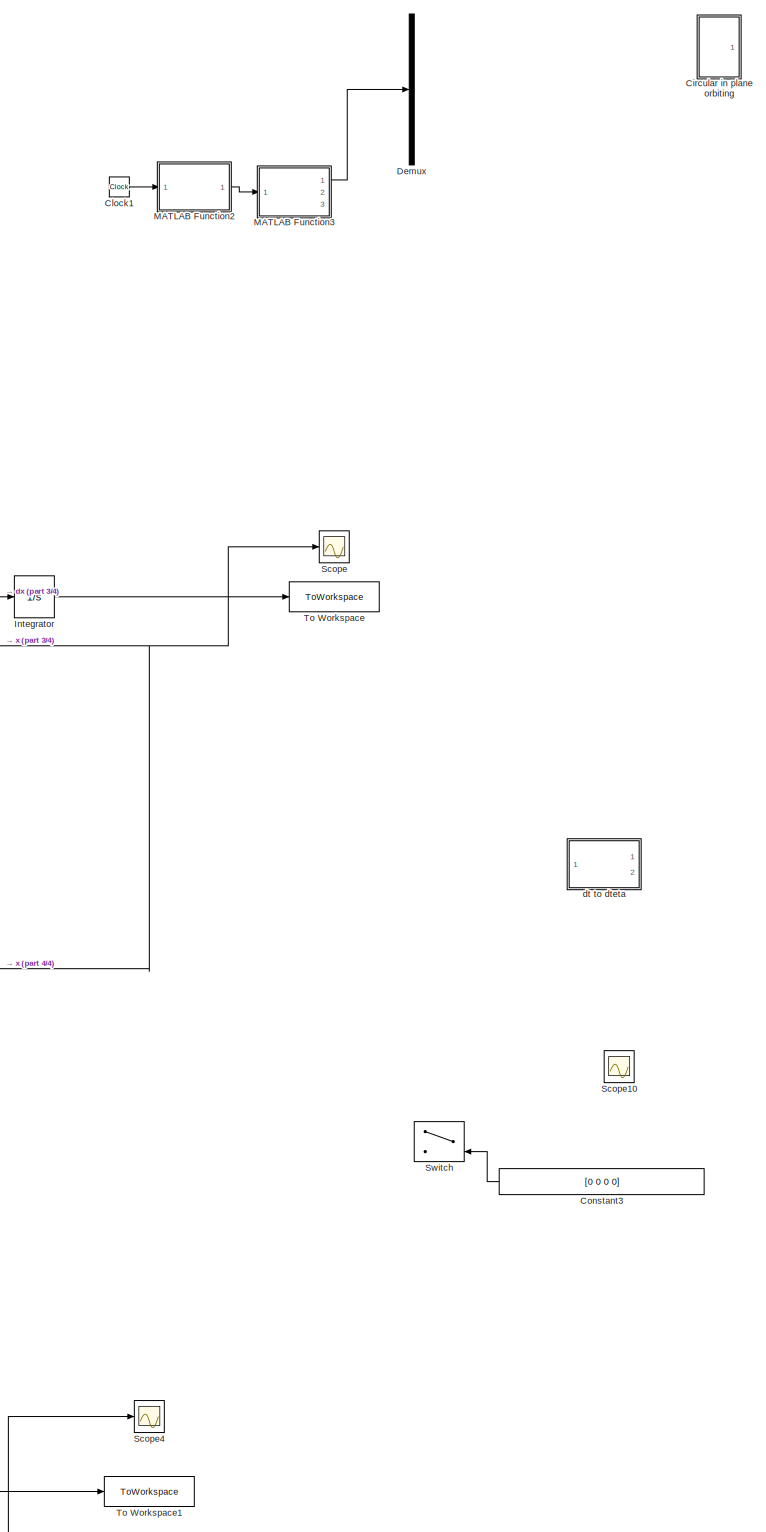
[diagram: root canvas - part 1/4, right side, full height]
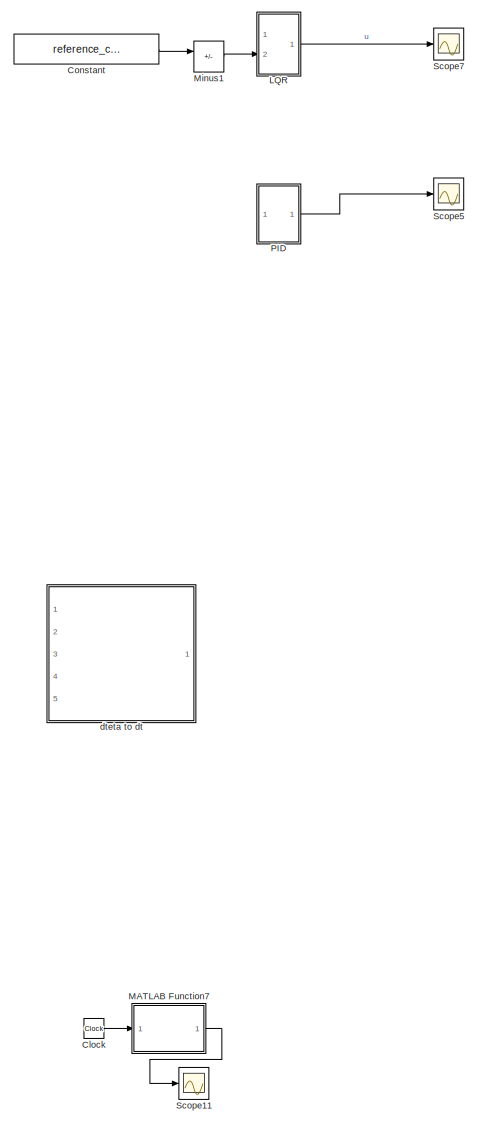
[diagram: root canvas - part 2/4, top right region]
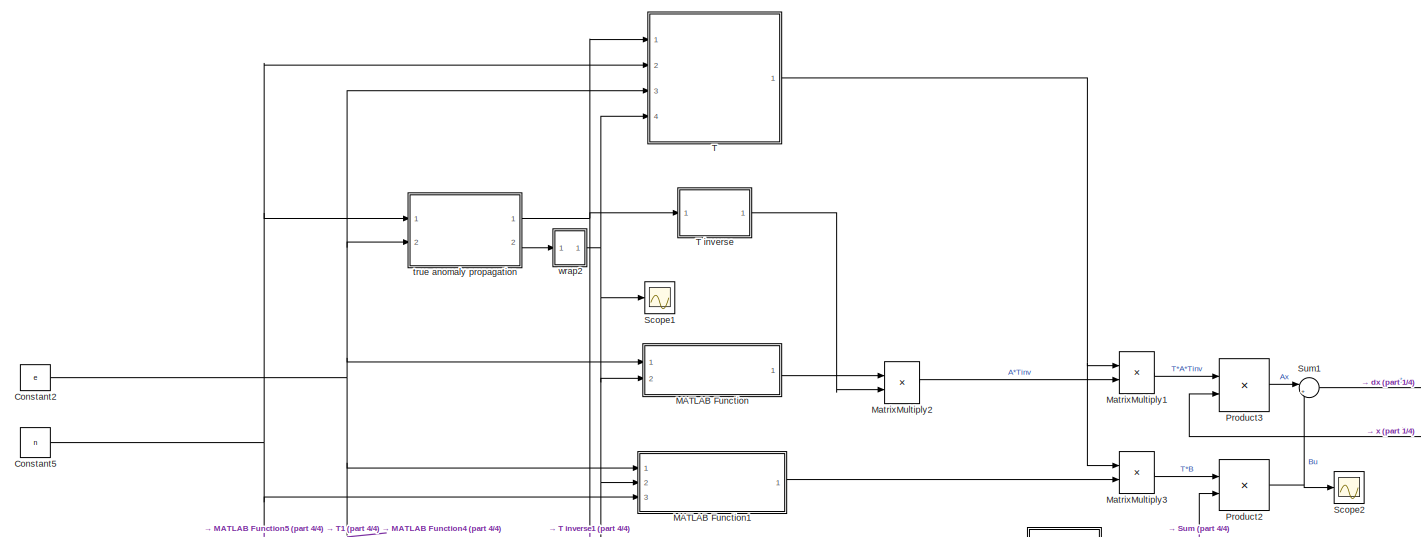
[diagram: root canvas - part 3/4, top left region]
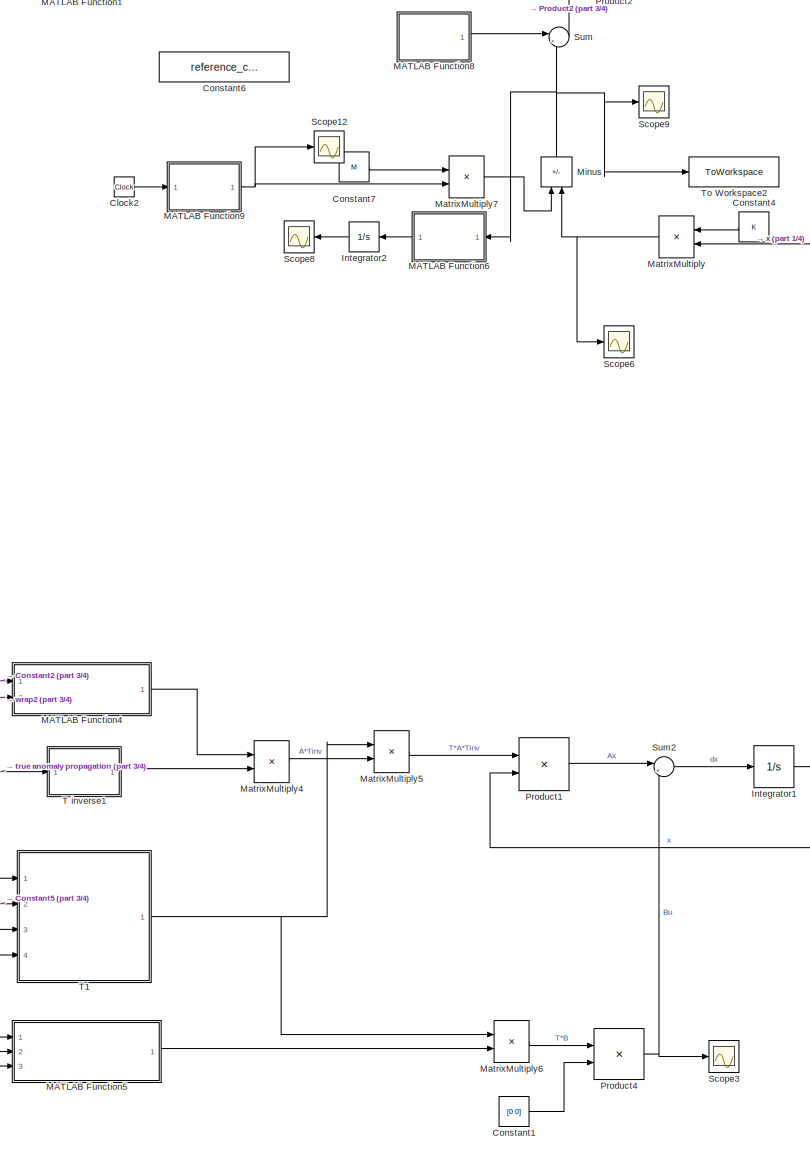
[diagram: root canvas - part 4/4, bottom center region]
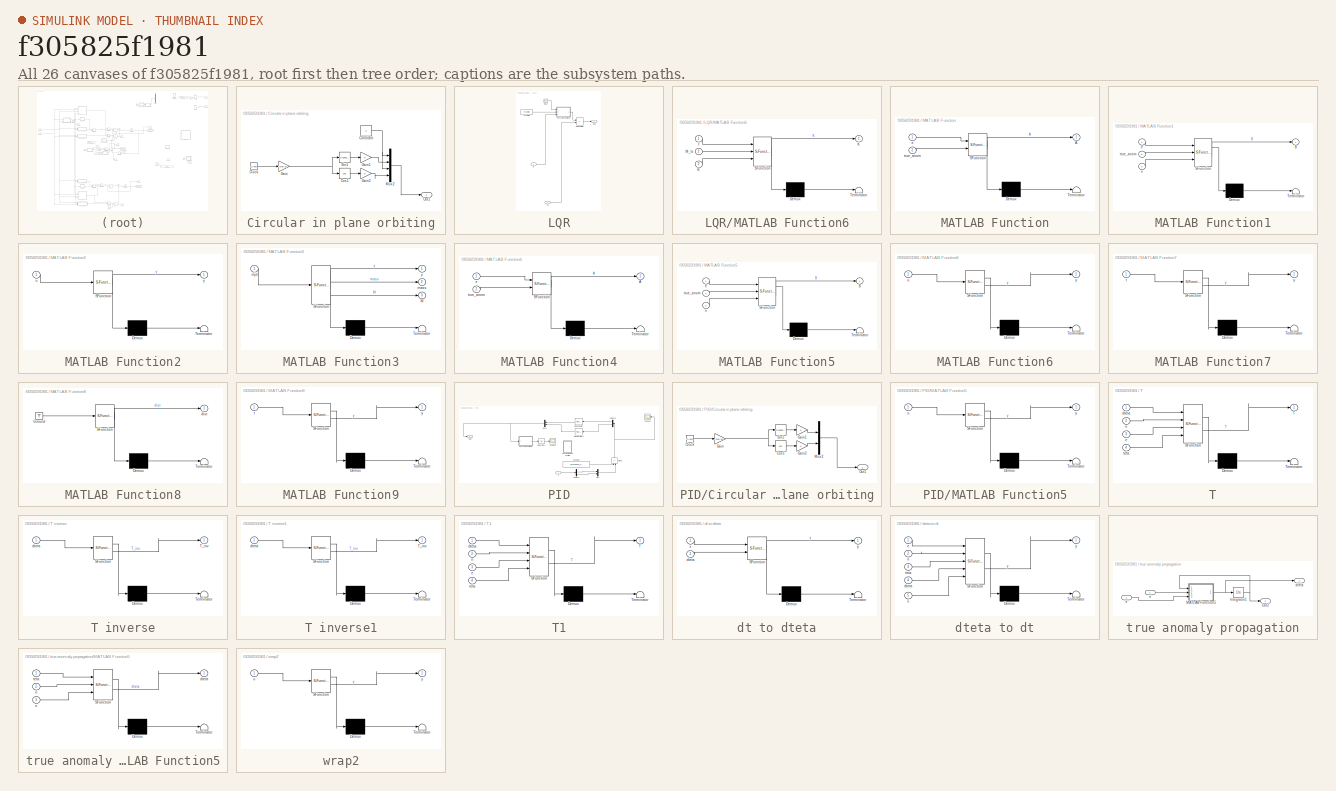
[diagram: thumbnail index - all 26 canvases of the model, root first then tree order]
MODEL slx_f305825f1981
KIND model
CONFIG AbsTol = auto
CONFIG EnableMultiTasking = off
CONFIG FixedStep = auto
CONFIG MaxStep = auto
CONFIG MinStep = auto
CONFIG RelTol = 1e-3
CONFIG SampleTimeConstraint = Unconstrained
CONFIG SolverName = VariableStepAuto
CONFIG StartTime = 0.0
CONFIG StopTime = 10000
BLOCK [SubSystem] Circular in plane orbiting
  Commented = on
  Ports = [0, 1]
  RequestExecContextInheritance = off
BLOCK [Clock] Circular in plane orbiting/Clock
BLOCK [Constant] Circular in plane orbiting/Constant
  Value = 0
BLOCK [Trigonometry] Circular in plane orbiting/Cos1
  Operator = cos
  Ports = [1, 1]
BLOCK [Gain] Circular in plane orbiting/Gain
  Gain = -2*pi/10
BLOCK [Gain] Circular in plane orbiting/Gain1
BLOCK [Gain] Circular in plane orbiting/Gain2
BLOCK [Mux] Circular in plane orbiting/Mux2
  DisplayOption = bar
  Ports = [4, 1]
BLOCK [Outport] Circular in plane orbiting/Out1
BLOCK [Trigonometry] Circular in plane orbiting/Sin1
  Ports = [1, 1]
BLOCK [Clock] Clock
  Commented = on
BLOCK [Clock] Clock1
  Commented = on
BLOCK [Clock] Clock2
BLOCK [Constant] Constant
  Commented = on
  Value = reference_conds
BLOCK [Constant] Constant1
  Value = [0 0]
BLOCK [Constant] Constant2
  Value = e
BLOCK [Constant] Constant3
  NameLocation = top
  Value = [0 0 0 0]
BLOCK [Constant] Constant4
  NameLocation = top
  Value = K
BLOCK [Constant] Constant5
  Value = n
BLOCK [Constant] Constant6
  Value = reference_conds
BLOCK [Constant] Constant7
  Value = M
BLOCK [Demux] Demux
  Commented = on
  Outputs = 6
  Ports = [1, 6]
BLOCK [Integrator] Integrator
  InitialCondition = init_conds
  Ports = [1, 1]
BLOCK [Integrator] Integrator1
  InitialCondition = init_conds_z
  Ports = [1, 1]
BLOCK [Integrator] Integrator2
  NameLocation = top
  Ports = [1, 1]
BLOCK [SubSystem] LQR
  Commented = on
  Ports = [2, 1]
  RequestExecContextInheritance = off
BLOCK [Inport] LQR/B
BLOCK [Clock] LQR/Clock
BLOCK [FromFile] LQR/From File
  FileName = M_LQR.mat
  SampleTime = 0
BLOCK [Inport] LQR/In2
  Port = 2
BLOCK [SubSystem] LQR/MATLAB Function6
  ErrorFcn = Stateflow.Translate.translate
  PermitHierarchicalResolution = ExplicitOnly
  Ports = [3, 1]
  RequestExecContextInheritance = off
  SFBlockType = MATLAB Function
  TreatAsAtomicUnit = on
BLOCK [Demux] LQR/MATLAB Function6/ Demux 
  Outputs = 1
  Ports = [1, 1]
BLOCK [S-Function] LQR/MATLAB Function6/ SFunction 
  EnableBusSupport = on
  FunctionName = sf_sfun
  PortCounts = [3 2]
  Ports = [3, 2]
  SFcnIsStateOwnerBlock = off
  SFunctionDeploymentMode = off
  Tag = Stateflow S-Function 7
BLOCK [Terminator] LQR/MATLAB Function6/ Terminator 
BLOCK [Inport] LQR/MATLAB Function6/B
  Port = 3
BLOCK [Outport] LQR/MATLAB Function6/K
BLOCK [Inport] LQR/MATLAB Function6/M_ts
  Port = 2
BLOCK [Inport] LQR/MATLAB Function6/t
BLOCK [Product] LQR/MatrixMultiply
  Multiplication = Matrix(*)
  Ports = [2, 1]
BLOCK [Outport] LQR/Out1
BLOCK [SubSystem] MATLAB Function
  ErrorFcn = Stateflow.Translate.translate
  PermitHierarchicalResolution = ExplicitOnly
  Ports = [2, 1]
  RequestExecContextInheritance = off
  SFBlockType = MATLAB Function
  TreatAsAtomicUnit = on
BLOCK [Demux] MATLAB Function/ Demux 
  Outputs = 1
  Ports = [1, 1]
BLOCK [S-Function] MATLAB Function/ SFunction 
  EnableBusSupport = on
  FunctionName = sf_sfun
  PortCounts = [2 2]
  Ports = [2, 2]
  SFcnIsStateOwnerBlock = off
  SFunctionDeploymentMode = off
  Tag = Stateflow S-Function 2
BLOCK [Terminator] MATLAB Function/ Terminator 
BLOCK [Outport] MATLAB Function/A
BLOCK [Inport] MATLAB Function/e
BLOCK [Inport] MATLAB Function/true_anom
  Port = 2
BLOCK [SubSystem] MATLAB Function1
  ErrorFcn = Stateflow.Translate.translate
  PermitHierarchicalResolution = ExplicitOnly
  Ports = [3, 1]
  RequestExecContextInheritance = off
  SFBlockType = MATLAB Function
  TreatAsAtomicUnit = on
BLOCK [Demux] MATLAB Function1/ Demux 
  Outputs = 1
  Ports = [1, 1]
BLOCK [S-Function] MATLAB Function1/ SFunction 
  EnableBusSupport = on
  FunctionName = sf_sfun
  PortCounts = [3 2]
  Ports = [3, 2]
  SFcnIsStateOwnerBlock = off
  SFunctionDeploymentMode = off
  Tag = Stateflow S-Function 1
BLOCK [Terminator] MATLAB Function1/ Terminator 
BLOCK [Outport] MATLAB Function1/B
BLOCK [Inport] MATLAB Function1/e
BLOCK [Inport] MATLAB Function1/n
  Port = 3
BLOCK [Inport] MATLAB Function1/true_anom
  Port = 2
BLOCK [SubSystem] MATLAB Function2
  Commented = on
  ErrorFcn = Stateflow.Translate.translate
  PermitHierarchicalResolution = ExplicitOnly
  Ports = [1, 1]
  RequestExecContextInheritance = off
  SFBlockType = MATLAB Function
  TreatAsAtomicUnit = on
BLOCK [Demux] MATLAB Function2/ Demux 
  Outputs = 1
  Ports = [1, 1]
BLOCK [S-Function] MATLAB Function2/ SFunction 
  EnableBusSupport = on
  FunctionName = sf_sfun
  PortCounts = [1 2]
  Ports = [1, 2]
  SFcnIsStateOwnerBlock = off
  SFunctionDeploymentMode = off
  Tag = Stateflow S-Function 3
BLOCK [Terminator] MATLAB Function2/ Terminator 
BLOCK [Inport] MATLAB Function2/u
BLOCK [Outport] MATLAB Function2/y
BLOCK [SubSystem] MATLAB Function3
  Commented = on
  ErrorFcn = Stateflow.Translate.translate
  PermitHierarchicalResolution = ExplicitOnly
  Ports = [1, 3]
  RequestExecContextInheritance = off
  SFBlockType = MATLAB Function
  TreatAsAtomicUnit = on
BLOCK [Demux] MATLAB Function3/ Demux 
  Outputs = 1
  Ports = [1, 1]
BLOCK [S-Function] MATLAB Function3/ SFunction 
  EnableBusSupport = on
  FunctionName = sf_sfun
  PortCounts = [1 4]
  Ports = [1, 4]
  SFcnIsStateOwnerBlock = off
  SFunctionDeploymentMode = off
  Tag = Stateflow S-Function 4
BLOCK [Terminator] MATLAB Function3/ Terminator 
BLOCK [Outport] MATLAB Function3/M
  Port = 3
BLOCK [Outport] MATLAB Function3/mass
  Port = 2
BLOCK [Inport] MATLAB Function3/mjd
BLOCK [Outport] MATLAB Function3/y
BLOCK [SubSystem] MATLAB Function4
  ErrorFcn = Stateflow.Translate.translate
  PermitHierarchicalResolution = ExplicitOnly
  Ports = [2, 1]
  RequestExecContextInheritance = off
  SFBlockType = MATLAB Function
  TreatAsAtomicUnit = on
BLOCK [Demux] MATLAB Function4/ Demux 
  Outputs = 1
  Ports = [1, 1]
BLOCK [S-Function] MATLAB Function4/ SFunction 
  EnableBusSupport = on
  FunctionName = sf_sfun
  PortCounts = [2 2]
  Ports = [2, 2]
  SFcnIsStateOwnerBlock = off
  SFunctionDeploymentMode = off
  Tag = Stateflow S-Function 13
BLOCK [Terminator] MATLAB Function4/ Terminator 
BLOCK [Outport] MATLAB Function4/A
BLOCK [Inport] MATLAB Function4/e
BLOCK [Inport] MATLAB Function4/true_anom
  Port = 2
BLOCK [SubSystem] MATLAB Function5
  ErrorFcn = Stateflow.Translate.translate
  PermitHierarchicalResolution = ExplicitOnly
  Ports = [3, 1]
  RequestExecContextInheritance = off
  SFBlockType = MATLAB Function
  TreatAsAtomicUnit = on
BLOCK [Demux] MATLAB Function5/ Demux 
  Outputs = 1
  Ports = [1, 1]
BLOCK [S-Function] MATLAB Function5/ SFunction 
  EnableBusSupport = on
  FunctionName = sf_sfun
  PortCounts = [3 2]
  Ports = [3, 2]
  SFcnIsStateOwnerBlock = off
  SFunctionDeploymentMode = off
  Tag = Stateflow S-Function 16
BLOCK [Terminator] MATLAB Function5/ Terminator 
BLOCK [Outport] MATLAB Function5/B
BLOCK [Inport] MATLAB Function5/e
BLOCK [Inport] MATLAB Function5/n
  Port = 3
BLOCK [Inport] MATLAB Function5/true_anom
  Port = 2
BLOCK [SubSystem] MATLAB Function6
  ErrorFcn = Stateflow.Translate.translate
  NameLocation = top
  PermitHierarchicalResolution = ExplicitOnly
  Ports = [1, 1]
  RequestExecContextInheritance = off
  SFBlockType = MATLAB Function
  TreatAsAtomicUnit = on
BLOCK [Demux] MATLAB Function6/ Demux 
  Outputs = 1
  Ports = [1, 1]
BLOCK [S-Function] MATLAB Function6/ SFunction 
  EnableBusSupport = on
  FunctionName = sf_sfun
  PortCounts = [1 2]
  Ports = [1, 2]
  SFcnIsStateOwnerBlock = off
  SFunctionDeploymentMode = off
  Tag = Stateflow S-Function 17
BLOCK [Terminator] MATLAB Function6/ Terminator 
BLOCK [Inport] MATLAB Function6/u
BLOCK [Outport] MATLAB Function6/y
BLOCK [SubSystem] MATLAB Function7
  Commented = on
  ErrorFcn = Stateflow.Translate.translate
  PermitHierarchicalResolution = ExplicitOnly
  Ports = [1, 1]
  RequestExecContextInheritance = off
  SFBlockType = MATLAB Function
  TreatAsAtomicUnit = on
BLOCK [Demux] MATLAB Function7/ Demux 
  Outputs = 1
  Ports = [1, 1]
BLOCK [S-Function] MATLAB Function7/ SFunction 
  EnableBusSupport = on
  FunctionName = sf_sfun
  PortCounts = [1 2]
  Ports = [1, 2]
  SFcnIsStateOwnerBlock = off
  SFunctionDeploymentMode = off
  Tag = Stateflow S-Function 18
BLOCK [Terminator] MATLAB Function7/ Terminator 
BLOCK [Inport] MATLAB Function7/t
BLOCK [Outport] MATLAB Function7/y
BLOCK [SubSystem] MATLAB Function8
  ErrorFcn = Stateflow.Translate.translate
  PermitHierarchicalResolution = ExplicitOnly
  Ports = [0, 1]
  RequestExecContextInheritance = off
  SFBlockType = MATLAB Function
  TreatAsAtomicUnit = on
BLOCK [Demux] MATLAB Function8/ Demux 
  Outputs = 1
  Ports = [1, 1]
BLOCK [Ground] MATLAB Function8/ Ground 
BLOCK [S-Function] MATLAB Function8/ SFunction 
  EnableBusSupport = on
  FunctionName = sf_sfun
  PortCounts = [1 2]
  Ports = [1, 2]
  SFcnIsStateOwnerBlock = off
  SFunctionDeploymentMode = off
  Tag = Stateflow S-Function 19
BLOCK [Terminator] MATLAB Function8/ Terminator 
BLOCK [Outport] MATLAB Function8/dist
BLOCK [SubSystem] MATLAB Function9
  ErrorFcn = Stateflow.Translate.translate
  PermitHierarchicalResolution = ExplicitOnly
  Ports = [1, 1]
  RequestExecContextInheritance = off
  SFBlockType = MATLAB Function
  TreatAsAtomicUnit = on
BLOCK [Demux] MATLAB Function9/ Demux 
  Outputs = 1
  Ports = [1, 1]
BLOCK [S-Function] MATLAB Function9/ SFunction 
  EnableBusSupport = on
  FunctionName = sf_sfun
  PortCounts = [1 2]
  Ports = [1, 2]
  SFcnIsStateOwnerBlock = off
  SFunctionDeploymentMode = off
  Tag = Stateflow S-Function 20
BLOCK [Terminator] MATLAB Function9/ Terminator 
BLOCK [Inport] MATLAB Function9/t
BLOCK [Outport] MATLAB Function9/y
BLOCK [Product] MatrixMultiply
  Multiplication = Matrix(*)
  NameLocation = top
  Ports = [2, 1]
BLOCK [Product] MatrixMultiply1
  Multiplication = Matrix(*)
  Ports = [2, 1]
BLOCK [Product] MatrixMultiply2
  Multiplication = Matrix(*)
  Ports = [2, 1]
BLOCK [Product] MatrixMultiply3
  Multiplication = Matrix(*)
  Ports = [2, 1]
BLOCK [Product] MatrixMultiply4
  Multiplication = Matrix(*)
  Ports = [2, 1]
BLOCK [Product] MatrixMultiply5
  Multiplication = Matrix(*)
  Ports = [2, 1]
BLOCK [Product] MatrixMultiply6
  Multiplication = Matrix(*)
  Ports = [2, 1]
BLOCK [Product] MatrixMultiply7
  Multiplication = Matrix(*)
  Ports = [2, 1]
BLOCK [Sum] Minus
  IconShape = rectangular
  Inputs = +-
  NameLocation = right
  Ports = [2, 1]
BLOCK [Sum] Minus1
  Commented = on
  IconShape = rectangular
  Inputs = +-
  Ports = [2, 1]
BLOCK [SubSystem] PID
  Commented = on
  Ports = [1, 1]
  RequestExecContextInheritance = off
BLOCK [SubSystem] PID/Circular in plane orbiting
  Commented = on
  Ports = [0, 1]
  RequestExecContextInheritance = off
BLOCK [Clock] PID/Circular in plane orbiting/Clock
BLOCK [Trigonometry] PID/Circular in plane orbiting/Cos1
  Operator = cos
  Ports = [1, 1]
BLOCK [Gain] PID/Circular in plane orbiting/Gain
  Gain = -2*pi/10
BLOCK [Gain] PID/Circular in plane orbiting/Gain1
BLOCK [Gain] PID/Circular in plane orbiting/Gain2
BLOCK [Mux] PID/Circular in plane orbiting/Mux2
  DisplayOption = bar
  Inputs = 2
  Ports = [2, 1]
BLOCK [Outport] PID/Circular in plane orbiting/Out1
BLOCK [Trigonometry] PID/Circular in plane orbiting/Sin1
  Ports = [1, 1]
BLOCK [Constant] PID/Constant
  Value = reference_conds
BLOCK [Demux] PID/Demux1
  Ports = [1, 4]
BLOCK [Demux] PID/Demux2
  NameLocation = top
  Outputs = 2
  Ports = [1, 2]
BLOCK [Integrator] PID/Integrator1
  Ports = [1, 1]
BLOCK [SubSystem] PID/MATLAB Function5
  ErrorFcn = Stateflow.Translate.translate
  PermitHierarchicalResolution = ExplicitOnly
  Ports = [1, 1]
  RequestExecContextInheritance = off
  SFBlockType = MATLAB Function
  TreatAsAtomicUnit = on
BLOCK [Demux] PID/MATLAB Function5/ Demux 
  Outputs = 1
  Ports = [1, 1]
BLOCK [S-Function] PID/MATLAB Function5/ SFunction 
  EnableBusSupport = on
  FunctionName = sf_sfun
  PortCounts = [1 2]
  Ports = [1, 2]
  SFcnIsStateOwnerBlock = off
  SFunctionDeploymentMode = off
  Tag = Stateflow S-Function 6
BLOCK [Terminator] PID/MATLAB Function5/ Terminator 
BLOCK [Inport] PID/MATLAB Function5/u
BLOCK [Outport] PID/MATLAB Function5/y
BLOCK [Sum] PID/Minus
  IconShape = rectangular
  Inputs = +-
  NameLocation = right
  Ports = [2, 1]
BLOCK [Mux] PID/Mux
  DisplayOption = bar
  Inputs = 2
  Ports = [2, 1]
BLOCK [Mux] PID/Mux1
  DisplayOption = bar
  Inputs = 2
  NameLocation = top
  Ports = [2, 1]
BLOCK [Outport] PID/Out1
BLOCK [Reference] PID/PID Controller  REF=pid_lib/PID Controller
  NameLocation = top
  Ports = [1, 1]
  SourceBlock = pid_lib/PID Controller
  SourceProductBaseCode = SL
  SourceType = PID 1dof
BLOCK [Reference] PID/PID Controller1  REF=pid_lib/PID Controller
  NameLocation = top
  Ports = [1, 1]
  SourceBlock = pid_lib/PID Controller
  SourceProductBaseCode = SL
  SourceType = PID 1dof
BLOCK [Scope] PID/Scope4
  Floating = off
  NumInputPorts = 1
  Ports = [1]
  ScopeSpecificationString = Simulink.scopes.TimeScopeBlockCfg('CurrentConfiguration', extmgr.ConfigurationSet(extmgr.Configuration('Core','General UI',true),extmgr.Configuration('Core','Source UI',true),extmgr.Configuration('Sources','WiredSimulink',true,'DataLoggingVariableName','ScopeData1'),extmgr.Configuration('Visuals','Time Domain',true,'SerializedDisplays',{struct('MinYLimReal','-0.0001','MaxYLimReal','0.00089','YLabe...<+1395ch>
BLOCK [Scope] PID/Scope6
  Floating = off
  NameLocation = top
  NumInputPorts = 1
  Ports = [1]
  ScopeSpecificationString = Simulink.scopes.TimeScopeBlockCfg('CurrentConfiguration', extmgr.ConfigurationSet(extmgr.Configuration('Core','General UI',true),extmgr.Configuration('Core','Source UI',true),extmgr.Configuration('Sources','WiredSimulink',true,'DataLoggingVariableName','ScopeData6'),extmgr.Configuration('Visuals','Time Domain',true,'SerializedDisplays',{struct('MinYLimReal','-7.62803','MaxYLimReal','30.57968','YLa...<+1409ch>
BLOCK [Inport] PID/x
BLOCK [Product] Product1
  Multiplication = Matrix(*)
  NameLocation = top
  Ports = [2, 1]
  SCDEnableBlockLinearizationSpecification = on
BLOCK [Product] Product2
  Multiplication = Matrix(*)
  Ports = [2, 1]
  SCDEnableBlockLinearizationSpecification = on
BLOCK [Product] Product3
  Multiplication = Matrix(*)
  NameLocation = top
  Ports = [2, 1]
  SCDEnableBlockLinearizationSpecification = on
BLOCK [Product] Product4
  Multiplication = Matrix(*)
  Ports = [2, 1]
  SCDEnableBlockLinearizationSpecification = on
BLOCK [Scope] Scope
  Floating = off
  NumInputPorts = 1
  Ports = [1]
  ScopeSpecificationString = Simulink.scopes.TimeScopeBlockCfg('CurrentConfiguration', extmgr.ConfigurationSet(extmgr.Configuration('Core','General UI',true),extmgr.Configuration('Core','Source UI',true),extmgr.Configuration('Sources','WiredSimulink',true),extmgr.Configuration('Visuals','Time Domain',true,'SerializedDisplays',{struct('MinYLimReal','-24.94565','MaxYLimReal','24.51087','YLabelReal','','MinYLimMag','0.00000','Ma...<+1538ch>
BLOCK [Scope] Scope1
  Floating = off
  NumInputPorts = 1
  Ports = [1]
  ScopeSpecificationString = Simulink.scopes.TimeScopeBlockCfg('CurrentConfiguration', extmgr.ConfigurationSet(extmgr.Configuration('Core','General UI',true),extmgr.Configuration('Core','Source UI',true),extmgr.Configuration('Sources','WiredSimulink',true,'DataLoggingVariableName','ScopeData1'),extmgr.Configuration('Visuals','Time Domain',true,'SerializedDisplays',{struct('MinYLimReal','-0.78542','MaxYLimReal','7.06882','YLab...<+1402ch>
BLOCK [Scope] Scope10
  Floating = off
  NumInputPorts = 1
  Ports = [1]
  ScopeSpecificationString = Simulink.scopes.TimeScopeBlockCfg('CurrentConfiguration', extmgr.ConfigurationSet(extmgr.Configuration('Core','General UI',true),extmgr.Configuration('Core','Source UI',true),extmgr.Configuration('Sources','WiredSimulink',true,'DataLoggingVariableName','ScopeData1'),extmgr.Configuration('Visuals','Time Domain',true,'SerializedDisplays',{struct('MinYLimReal','-1.23683','MaxYLimReal','0.14854','YLab...<+1585ch>
BLOCK [Scope] Scope11
  Commented = on
  Floating = off
  NumInputPorts = 1
  Ports = [1]
  ScopeSpecificationString = Simulink.scopes.TimeScopeBlockCfg('CurrentConfiguration', extmgr.ConfigurationSet(extmgr.Configuration('Core','General UI',true),extmgr.Configuration('Core','Source UI',true),extmgr.Configuration('Sources','WiredSimulink',true,'DataLoggingVariableName','ScopeData5'),extmgr.Configuration('Visuals','Time Domain',true,'SerializedDisplays',{struct('MinYLimReal','-56.25','MaxYLimReal','6.25','YLabelRea...<+1453ch>
BLOCK [Scope] Scope12
  Floating = off
  NumInputPorts = 1
  Ports = [1]
  ScopeSpecificationString = Simulink.scopes.TimeScopeBlockCfg('CurrentConfiguration', extmgr.ConfigurationSet(extmgr.Configuration('Core','General UI',true),extmgr.Configuration('Core','Source UI',true),extmgr.Configuration('Sources','WiredSimulink',true,'DataLoggingVariableName','ScopeData1'),extmgr.Configuration('Visuals','Time Domain',true,'SerializedDisplays',{struct('MinYLimReal','-22.25031','MaxYLimReal','-19.96001','Y...<+1449ch>
BLOCK [Scope] Scope2
  Floating = off
  NumInputPorts = 1
  Ports = [1]
  ScopeSpecificationString = Simulink.scopes.TimeScopeBlockCfg('CurrentConfiguration', extmgr.ConfigurationSet(extmgr.Configuration('Core','General UI',true),extmgr.Configuration('Core','Source UI',true),extmgr.Configuration('Sources','WiredSimulink',true,'DataLoggingVariableName','ScopeData1'),extmgr.Configuration('Visuals','Time Domain',true,'SerializedDisplays',{struct('MinYLimReal','-1.00000','MaxYLimReal','1.00000','YLab...<+1384ch>
BLOCK [Scope] Scope3
  Floating = off
  NumInputPorts = 1
  Ports = [1]
  ScopeSpecificationString = Simulink.scopes.TimeScopeBlockCfg('CurrentConfiguration', extmgr.ConfigurationSet(extmgr.Configuration('Core','General UI',true),extmgr.Configuration('Core','Source UI',true),extmgr.Configuration('Sources','WiredSimulink',true,'DataLoggingVariableName','ScopeData1'),extmgr.Configuration('Visuals','Time Domain',true,'SerializedDisplays',{struct('MinYLimReal','-1.00000','MaxYLimReal','1.00000','YLab...<+1370ch>
BLOCK [Scope] Scope4
  Floating = off
  NumInputPorts = 1
  Ports = [1]
  ScopeSpecificationString = Simulink.scopes.TimeScopeBlockCfg('CurrentConfiguration', extmgr.ConfigurationSet(extmgr.Configuration('Core','General UI',true),extmgr.Configuration('Core','Source UI',true),extmgr.Configuration('Sources','WiredSimulink',true,'DataLoggingVariableName','ScopeData2'),extmgr.Configuration('Visuals','Time Domain',true,'SerializedDisplays',{struct('MinYLimReal','-6.5','MaxYLimReal','1.83333','YLabelRe...<+1441ch>
BLOCK [Scope] Scope5
  Commented = on
  Floating = off
  NumInputPorts = 1
  Ports = [1]
  ScopeSpecificationString = Simulink.scopes.TimeScopeBlockCfg('CurrentConfiguration', extmgr.ConfigurationSet(extmgr.Configuration('Core','General UI',true),extmgr.Configuration('Core','Source UI',true),extmgr.Configuration('Sources','WiredSimulink',true,'DataLoggingVariableName','ScopeData5'),extmgr.Configuration('Visuals','Time Domain',true,'SerializedDisplays',{struct('MinYLimReal','-0.00004','MaxYLimReal','0.00039','YLab...<+1418ch>
BLOCK [Scope] Scope6
  Floating = off
  NumInputPorts = 1
  Ports = [1]
  ScopeSpecificationString = Simulink.scopes.TimeScopeBlockCfg('CurrentConfiguration', extmgr.ConfigurationSet(extmgr.Configuration('Core','General UI',true),extmgr.Configuration('Core','Source UI',true),extmgr.Configuration('Sources','WiredSimulink',true,'DataLoggingVariableName','ScopeData1'),extmgr.Configuration('Visuals','Time Domain',true,'SerializedDisplays',{struct('MinYLimReal','-0.38697','MaxYLimReal','0.043','YLabel...<+1425ch>
BLOCK [Scope] Scope7
  Commented = on
  Floating = off
  NumInputPorts = 1
  Ports = [1]
  ScopeSpecificationString = Simulink.scopes.TimeScopeBlockCfg('CurrentConfiguration', extmgr.ConfigurationSet(extmgr.Configuration('Core','General UI',true),extmgr.Configuration('Core','Source UI',true),extmgr.Configuration('Sources','WiredSimulink',true,'DataLoggingVariableName','ScopeData1'),extmgr.Configuration('Visuals','Time Domain',true,'SerializedDisplays',{struct('MinYLimReal','-16.40981','MaxYLimReal','10.65705','YL...<+1490ch>
BLOCK [Scope] Scope8
  Floating = off
  NameLocation = top
  NumInputPorts = 1
  Ports = [1]
  ScopeSpecificationString = Simulink.scopes.TimeScopeBlockCfg('CurrentConfiguration', extmgr.ConfigurationSet(extmgr.Configuration('Core','General UI',true),extmgr.Configuration('Core','Source UI',true),extmgr.Configuration('Sources','WiredSimulink',true,'DataLoggingVariableName','ScopeData2'),extmgr.Configuration('Visuals','Time Domain',true,'SerializedDisplays',{struct('MinYLimReal','-0.04149','MaxYLimReal','0.37342','YLab...<+1401ch>
BLOCK [Scope] Scope9
  Floating = off
  NumInputPorts = 1
  Ports = [1]
  ScopeSpecificationString = Simulink.scopes.TimeScopeBlockCfg('CurrentConfiguration', extmgr.ConfigurationSet(extmgr.Configuration('Core','General UI',true),extmgr.Configuration('Core','Source UI',true),extmgr.Configuration('Sources','WiredSimulink',true,'DataLoggingVariableName','ScopeData3'),extmgr.Configuration('Visuals','Time Domain',true,'SerializedDisplays',{struct('MinYLimReal','-0.00113','MaxYLimReal','0.00113','YLab...<+1523ch>
BLOCK [Sum] Sum
  Inputs = |++
  Ports = [2, 1]
BLOCK [Sum] Sum1
  Inputs = |++
  Ports = [2, 1]
BLOCK [Sum] Sum2
  Inputs = |++
  Ports = [2, 1]
BLOCK [Switch] Switch
  Criteria = u2 > Threshold
  InputSameDT = off
  NameLocation = top
  SaturateOnIntegerOverflow = off
  Threshold = 0.0010
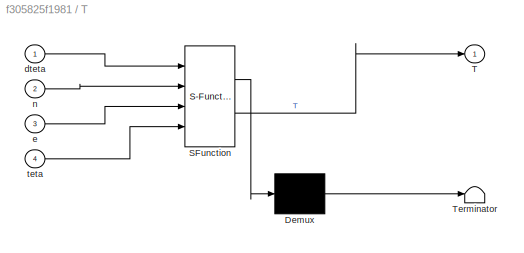
BLOCK [SubSystem] T
  ErrorFcn = Stateflow.Translate.translate
  PermitHierarchicalResolution = ExplicitOnly
  Ports = [4, 1]
  RequestExecContextInheritance = off
  SFBlockType = MATLAB Function
  TreatAsAtomicUnit = on
BLOCK [SubSystem] T inverse
  ErrorFcn = Stateflow.Translate.translate
  PermitHierarchicalResolution = ExplicitOnly
  Ports = [1, 1]
  RequestExecContextInheritance = off
  SFBlockType = MATLAB Function
  TreatAsAtomicUnit = on
BLOCK [Demux] T inverse/ Demux 
  Outputs = 1
  Ports = [1, 1]
BLOCK [S-Function] T inverse/ SFunction 
  EnableBusSupport = on
  FunctionName = sf_sfun
  PortCounts = [1 2]
  Ports = [1, 2]
  SFcnIsStateOwnerBlock = off
  SFunctionDeploymentMode = off
  Tag = Stateflow S-Function 12
BLOCK [Terminator] T inverse/ Terminator 
BLOCK [Outport] T inverse/T_inv
BLOCK [Inport] T inverse/dteta
BLOCK [SubSystem] T inverse1
  ErrorFcn = Stateflow.Translate.translate
  PermitHierarchicalResolution = ExplicitOnly
  Ports = [1, 1]
  RequestExecContextInheritance = off
  SFBlockType = MATLAB Function
  TreatAsAtomicUnit = on
BLOCK [Demux] T inverse1/ Demux 
  Outputs = 1
  Ports = [1, 1]
BLOCK [S-Function] T inverse1/ SFunction 
  EnableBusSupport = on
  FunctionName = sf_sfun
  PortCounts = [1 2]
  Ports = [1, 2]
  SFcnIsStateOwnerBlock = off
  SFunctionDeploymentMode = off
  Tag = Stateflow S-Function 14
BLOCK [Terminator] T inverse1/ Terminator 
BLOCK [Outport] T inverse1/T_inv
BLOCK [Inport] T inverse1/dteta
BLOCK [Demux] T/ Demux 
  Outputs = 1
  Ports = [1, 1]
BLOCK [S-Function] T/ SFunction 
  EnableBusSupport = on
  FunctionName = sf_sfun
  PortCounts = [4 2]
  Ports = [4, 2]
  SFcnIsStateOwnerBlock = off
  SFunctionDeploymentMode = off
  Tag = Stateflow S-Function 5
BLOCK [Terminator] T/ Terminator 
BLOCK [Outport] T/T
BLOCK [Inport] T/dteta
BLOCK [Inport] T/e
  Port = 3
BLOCK [Inport] T/n
  Port = 2
BLOCK [Inport] T/teta
  Port = 4
BLOCK [SubSystem] T1
  ErrorFcn = Stateflow.Translate.translate
  PermitHierarchicalResolution = ExplicitOnly
  Ports = [4, 1]
  RequestExecContextInheritance = off
  SFBlockType = MATLAB Function
  TreatAsAtomicUnit = on
BLOCK [Demux] T1/ Demux 
  Outputs = 1
  Ports = [1, 1]
BLOCK [S-Function] T1/ SFunction 
  EnableBusSupport = on
  FunctionName = sf_sfun
  PortCounts = [4 2]
  Ports = [4, 2]
  SFcnIsStateOwnerBlock = off
  SFunctionDeploymentMode = off
  Tag = Stateflow S-Function 15
BLOCK [Terminator] T1/ Terminator 
BLOCK [Outport] T1/T
BLOCK [Inport] T1/dteta
BLOCK [Inport] T1/e
  Port = 3
BLOCK [Inport] T1/n
  Port = 2
BLOCK [Inport] T1/teta
  Port = 4
BLOCK [ToWorkspace] To Workspace
  FixptAsFi = on
  MaxDataPoints = inf
  Ports = [1]
  SampleTime = -1
  SaveFormat = Timeseries
  VariableName = simout
BLOCK [ToWorkspace] To Workspace1
  FixptAsFi = on
  MaxDataPoints = inf
  Ports = [1]
  SampleTime = -1
  SaveFormat = Timeseries
  VariableName = z_z
BLOCK [ToWorkspace] To Workspace2
  FixptAsFi = on
  MaxDataPoints = inf
  Ports = [1]
  SampleTime = -1
  SaveFormat = Timeseries
  VariableName = thrust
BLOCK [SubSystem] dt to dteta
  Commented = on
  ErrorFcn = Stateflow.Translate.translate
  NameLocation = top
  PermitHierarchicalResolution = ExplicitOnly
  Ports = [2, 1]
  RequestExecContextInheritance = off
  SFBlockType = MATLAB Function
  TreatAsAtomicUnit = on
BLOCK [Demux] dt to dteta/ Demux 
  Outputs = 1
  Ports = [1, 1]
BLOCK [S-Function] dt to dteta/ SFunction 
  EnableBusSupport = on
  FunctionName = sf_sfun
  PortCounts = [2 2]
  Ports = [2, 2]
  SFcnIsStateOwnerBlock = off
  SFunctionDeploymentMode = off
  Tag = Stateflow S-Function 10
BLOCK [Terminator] dt to dteta/ Terminator 
BLOCK [Inport] dt to dteta/dteta
  Port = 2
BLOCK [Inport] dt to dteta/x
BLOCK [Outport] dt to dteta/y
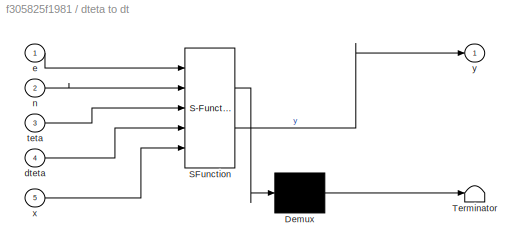
BLOCK [SubSystem] dteta to dt
  Commented = on
  ErrorFcn = Stateflow.Translate.translate
  PermitHierarchicalResolution = ExplicitOnly
  Ports = [5, 1]
  RequestExecContextInheritance = off
  SFBlockType = MATLAB Function
  TreatAsAtomicUnit = on
BLOCK [Demux] dteta to dt/ Demux 
  Outputs = 1
  Ports = [1, 1]
BLOCK [S-Function] dteta to dt/ SFunction 
  EnableBusSupport = on
  FunctionName = sf_sfun
  PortCounts = [5 2]
  Ports = [5, 2]
  SFcnIsStateOwnerBlock = off
  SFunctionDeploymentMode = off
  Tag = Stateflow S-Function 9
BLOCK [Terminator] dteta to dt/ Terminator 
BLOCK [Inport] dteta to dt/dteta
  Port = 4
BLOCK [Inport] dteta to dt/e
BLOCK [Inport] dteta to dt/n
  Port = 2
BLOCK [Inport] dteta to dt/teta
  Port = 3
BLOCK [Inport] dteta to dt/x
  Port = 5
BLOCK [Outport] dteta to dt/y
BLOCK [SubSystem] true anomaly propagation
  Ports = [2, 2]
  RequestExecContextInheritance = off
BLOCK [Integrator] true anomaly propagation/Integrator1
  Ports = [1, 1]
BLOCK [SubSystem] true anomaly propagation/MATLAB Function5
  ErrorFcn = Stateflow.Translate.translate
  PermitHierarchicalResolution = ExplicitOnly
  Ports = [3, 1]
  RequestExecContextInheritance = off
  SFBlockType = MATLAB Function
  TreatAsAtomicUnit = on
BLOCK [Demux] true anomaly propagation/MATLAB Function5/ Demux 
  Outputs = 1
  Ports = [1, 1]
BLOCK [S-Function] true anomaly propagation/MATLAB Function5/ SFunction 
  EnableBusSupport = on
  FunctionName = sf_sfun
  PortCounts = [3 2]
  Ports = [3, 2]
  SFcnIsStateOwnerBlock = off
  SFunctionDeploymentMode = off
  Tag = Stateflow S-Function 8
BLOCK [Terminator] true anomaly propagation/MATLAB Function5/ Terminator 
BLOCK [Outport] true anomaly propagation/MATLAB Function5/dteta
BLOCK [Inport] true anomaly propagation/MATLAB Function5/e
  Port = 3
BLOCK [Inport] true anomaly propagation/MATLAB Function5/n
  Port = 2
BLOCK [Inport] true anomaly propagation/MATLAB Function5/teta
BLOCK [Outport] true anomaly propagation/Out2
  Port = 2
BLOCK [Outport] true anomaly propagation/dteta
BLOCK [Inport] true anomaly propagation/e
  Port = 2
BLOCK [Inport] true anomaly propagation/n
BLOCK [SubSystem] wrap2
  ErrorFcn = Stateflow.Translate.translate
  PermitHierarchicalResolution = ExplicitOnly
  Ports = [1, 1]
  RequestExecContextInheritance = off
  SFBlockType = MATLAB Function
  TreatAsAtomicUnit = on
BLOCK [Demux] wrap2/ Demux 
  Outputs = 1
  Ports = [1, 1]
BLOCK [S-Function] wrap2/ SFunction 
  EnableBusSupport = on
  FunctionName = sf_sfun
  PortCounts = [1 2]
  Ports = [1, 2]
  SFcnIsStateOwnerBlock = off
  SFunctionDeploymentMode = off
  Tag = Stateflow S-Function 11
BLOCK [Terminator] wrap2/ Terminator 
BLOCK [Inport] wrap2/u
BLOCK [Outport] wrap2/y
LINE Circular in plane orbiting/Clock:1 -> Circular in plane orbiting/Gain:1
NET Circular in plane orbiting/Constant:1 -> Circular in plane orbiting/Mux2:1, Circular in plane orbiting/Mux2:3
LINE Circular in plane orbiting/Cos1:1 -> Circular in plane orbiting/Gain2:1
LINE Circular in plane orbiting/Gain1:1 -> Circular in plane orbiting/Mux2:2
LINE Circular in plane orbiting/Gain2:1 -> Circular in plane orbiting/Mux2:4
NET Circular in plane orbiting/Gain:1 -> Circular in plane orbiting/Cos1:1, Circular in plane orbiting/Sin1:1
LINE Circular in plane orbiting/Mux2:1 -> Circular in plane orbiting/Out1:1
LINE Circular in plane orbiting/Sin1:1 -> Circular in plane orbiting/Gain1:1
LINE Clock1:1 -> MATLAB Function2:1
LINE Clock2:1 -> MATLAB Function9:1
LINE Clock:1 -> MATLAB Function7:1
LINE Constant1:1 -> Product4:2
NET Constant2:1 -> MATLAB Function1:1, MATLAB Function4:1, MATLAB Function5:1, MATLAB Function:1, T1:3, T:3, true anomaly propagation:2
LINE Constant3:1 -> Switch:3
LINE Constant4:1 -> MatrixMultiply:1
NET Constant5:1 -> MATLAB Function1:3, MATLAB Function5:3, T1:2, T:2, true anomaly propagation:1
LINE Constant7:1 -> MatrixMultiply7:1
LINE Constant:1 -> Minus1:1
NET Integrator1:1 -> Product1:2, Scope4:1, To Workspace1:1
LINE Integrator2:1 -> Scope8:1
NET Integrator:1 -> MatrixMultiply:2, Product3:2, Scope:1, To Workspace:1
LINE LQR/B:1 -> LQR/MATLAB Function6:3
LINE LQR/Clock:1 -> LQR/MATLAB Function6:1
LINE LQR/From File:1 -> LQR/MATLAB Function6:2
LINE LQR/In2:1 -> LQR/MatrixMultiply:2
LINE LQR/MATLAB Function6:1 -> LQR/MatrixMultiply:1
LINE LQR/MatrixMultiply:1 -> LQR/Out1:1
LINE LQR:1 -> Scope7:1
LINE MATLAB Function1:1 -> MatrixMultiply3:2
LINE MATLAB Function2:1 -> MATLAB Function3:1
LINE MATLAB Function3:1 -> Demux:1
LINE MATLAB Function4:1 -> MatrixMultiply4:1
LINE MATLAB Function5:1 -> MatrixMultiply6:2
LINE MATLAB Function6:1 -> Integrator2:1
LINE MATLAB Function7:1 -> Scope11:1
LINE MATLAB Function8:1 -> Sum:1
NET MATLAB Function9:1 -> MatrixMultiply7:2, Scope12:1
LINE MATLAB Function:1 -> MatrixMultiply2:1
LINE MatrixMultiply1:1 -> Product3:1
LINE MatrixMultiply2:1 -> MatrixMultiply1:2
LINE MatrixMultiply3:1 -> Product2:1
LINE MatrixMultiply4:1 -> MatrixMultiply5:2
LINE MatrixMultiply5:1 -> Product1:1
LINE MatrixMultiply6:1 -> Product4:1
LINE MatrixMultiply7:1 -> Minus:1
NET MatrixMultiply:1 -> Minus:2, Scope6:1
LINE Minus1:1 -> LQR:2
NET Minus:1 -> MATLAB Function6:1, Scope9:1, Sum:2, To Workspace2:1
LINE PID/Circular in plane orbiting/Clock:1 -> PID/Circular in plane orbiting/Gain:1
LINE PID/Circular in plane orbiting/Cos1:1 -> PID/Circular in plane orbiting/Gain2:1
LINE PID/Circular in plane orbiting/Gain1:1 -> PID/Circular in plane orbiting/Mux2:1
LINE PID/Circular in plane orbiting/Gain2:1 -> PID/Circular in plane orbiting/Mux2:2
NET PID/Circular in plane orbiting/Gain:1 -> PID/Circular in plane orbiting/Cos1:1, PID/Circular in plane orbiting/Sin1:1
LINE PID/Circular in plane orbiting/Mux2:1 -> PID/Circular in plane orbiting/Out1:1
LINE PID/Circular in plane orbiting/Sin1:1 -> PID/Circular in plane orbiting/Gain1:1
LINE PID/Constant:1 -> PID/Minus:1
LINE PID/Demux1:2 -> PID/Mux:1
LINE PID/Demux1:4 -> PID/Mux:2
LINE PID/Demux2:1 -> PID/PID Controller:1
LINE PID/Demux2:2 -> PID/PID Controller1:1
LINE PID/Integrator1:1 -> PID/Scope4:1
LINE PID/MATLAB Function5:1 -> PID/Integrator1:1
NET PID/Minus:1 -> PID/Demux2:1, PID/Scope6:1
NET PID/Mux1:1 -> PID/MATLAB Function5:1, PID/Out1:1
LINE PID/Mux:1 -> PID/Minus:2
LINE PID/PID Controller1:1 -> PID/Mux1:2
LINE PID/PID Controller:1 -> PID/Mux1:1
LINE PID/x:1 -> PID/Demux1:1
LINE PID:1 -> Scope5:1
LINE Product1:1 -> Sum2:1
NET Product2:1 -> Scope2:1, Sum1:2
LINE Product3:1 -> Sum1:1
NET Product4:1 -> Scope3:1, Sum2:2
LINE Sum1:1 -> Integrator:1
LINE Sum2:1 -> Integrator1:1
LINE Sum:1 -> Product2:2
LINE T inverse1:1 -> MatrixMultiply4:2
LINE T inverse:1 -> MatrixMultiply2:2
NET T1:1 -> MatrixMultiply5:1, MatrixMultiply6:1
NET T:1 -> MatrixMultiply1:1, MatrixMultiply3:1
NET true anomaly propagation/Integrator1:1 -> true anomaly propagation/MATLAB Function5:1, true anomaly propagation/Out2:1
NET true anomaly propagation/MATLAB Function5:1 -> true anomaly propagation/Integrator1:1, true anomaly propagation/dteta:1
LINE true anomaly propagation/e:1 -> true anomaly propagation/MATLAB Function5:3
LINE true anomaly propagation/n:1 -> true anomaly propagation/MATLAB Function5:2
NET true anomaly propagation:1 -> T inverse1:1, T inverse:1, T1:1, T:1
LINE true anomaly propagation:2 -> wrap2:1
NET wrap2:1 -> MATLAB Function1:2, MATLAB Function4:2, MATLAB Function5:2, MATLAB Function:2, Scope1:1, T1:4, T:4
note: NET lines group one-source signal fan-out (src -> all destinations, sorted); 1:1 wires keep LINE
CHART T inverse states=1 transitions=1
  STATE_LABEL 'eML_blk_kernel()'
  STATE_LABEL 'SCRIPT:\nfunction T_inv = fcn(dteta)\nT_inv=[1/dteta 0 0 0; 0 1 0 0; 0 0 1/dteta 0; 0 0 0 1];\n'
CHART MATLAB Function1 states=1 transitions=1
  STATE_LABEL 'eML_blk_kernel()'
  STATE_LABEL 'SCRIPT:\nfunction B = B_ss(e,true_anom,n)\nB=((1-(e^2))^3)/(((1+e*cos(true_anom))^4)*(n^2))*[1 0; 0 0; 0 1; 0 0];\n'
CHART MATLAB Function4 states=1 transitions=1
  STATE_LABEL 'eML_blk_kernel()'
  STATE_LABEL 'SCRIPT:\nfunction A = A_ss_z(e,true_anom)\nA=[2*e*sin(true_anom)/(1+e*cos(true_anom)) -1/(1+e*cos(true_anom)); 1 0];\n\n'
CHART T inverse1 states=1 transitions=1
  STATE_LABEL 'eML_blk_kernel()'
  STATE_LABEL 'SCRIPT:\nfunction T_inv = fcn(dteta)\nT_inv=[1/dteta 0; 0 1;];\n'
CHART T1 states=1 transitions=1
  STATE_LABEL 'eML_blk_kernel()'
  STATE_LABEL 'SCRIPT:\nfunction T = fcn(dteta, n,e,teta)\nT=[dteta^2 dteta*(-(n*2*(1+e*cos(teta))*e*sin(teta)/((1-e^2)^1.5))); 0 dteta];\n'
CHART MATLAB Function5 states=1 transitions=1
  STATE_LABEL 'eML_blk_kernel()'
  STATE_LABEL 'SCRIPT:\nfunction B = B_ss(e,true_anom,n)\nB=((1-(e^2))^3)/(((1+e*cos(true_anom))^4)*(n^2))*[1 0; 0 0];\n'
CHART MATLAB Function6 states=1 transitions=1
  STATE_LABEL 'eML_blk_kernel()'
  STATE_LABEL 'SCRIPT:\nfunction y = fcn(u)\n\ny =norm(u);\n'
CHART MATLAB Function7 states=1 transitions=1
  STATE_LABEL 'eML_blk_kernel()'
  STATE_LABEL "SCRIPT:\nfunction y = fcn(t)\nif (-20+0.004*t)<-50\n    y=[-0.004 -20-0.004*t 0 0]';\nelse\n    y=[0 -50 0 0]';\nend\n"
CHART MATLAB Function8 states=1 transitions=1
  STATE_LABEL 'eML_blk_kernel()'
  STATE_LABEL "SCRIPT:\nfunction dist = fcn()\ndist=[0 0]';\n\n"
CHART MATLAB Function9 states=1 transitions=1
  STATE_LABEL 'eML_blk_kernel()'
  STATE_LABEL "SCRIPT:\nfunction y = fcn(t)\nif t<=5\n    %f is m/s^2, assuming 100kg mass this is 1N, ok for ramp\n    y=[-21+0.5*0.001*(t^2) 0]';\nelseif and(t>=5,t<=10)\n    y=[-21+0.025-0.5*0.001*(t^2) 0]';\nelse\n    y=[-21 0]';\nend\n\n\n"
CHART MATLAB Function states=1 transitions=1
  STATE_LABEL 'eML_blk_kernel()'
  STATE_LABEL 'SCRIPT:\nfunction A = A_ss(e,true_anom)\nA=[ 2*e*sin(true_anom)/(1+e*cos(true_anom)), (3+e*cos(true_anom))/(1+e*cos(true_anom)), 2, -2*e*sin(true_anom)/(1+e*cos(true_anom)); \n    1, 0, 0, 0;\n   -2, 2*e*sin(true_anom)/(1+e*cos(true_anom)), 2*e*sin(true_anom)/(1+e*cos(true_anom)), e*cos(true_anom)/(1+e*cos(true_anom));\n   0, 0, 1, 0];\n\n'
CHART MATLAB Function2 states=1 transitions=1
  STATE_LABEL 'eML_blk_kernel()'
  STATE_LABEL 'SCRIPT:\nfunction y = time_conv(u)\ny=double(60676+((u/3600)/24));\n'
CHART MATLAB Function3 states=1 transitions=1
  STATE_LABEL 'eML_blk_kernel()'
  STATE_LABEL 'SCRIPT:\nfunction [y, mass, M]= get_eph(mjd)\n    [y, mass, M]=ephNEO(mjd,28);\n\n'
CHART T states=1 transitions=1
  STATE_LABEL 'eML_blk_kernel()'
  STATE_LABEL 'SCRIPT:\nfunction T = fcn(dteta, n,e,teta)\nT=[dteta^2 dteta*(-(n*2*(1+e*cos(teta))*e*sin(teta)/((1-e^2)^1.5))) 0 0; 0 dteta 0 0; 0 0 dteta^2 dteta*(-(n*2*(1+e*cos(teta))*e*sin(teta)/((1-e^2)^1.5))); 0 0 0 dteta];\n'
CHART PID/MATLAB Function5 states=1 transitions=1
  STATE_LABEL 'eML_blk_kernel()'
  STATE_LABEL 'SCRIPT:\nfunction y = fcn(u)\n\ny =norm(u);\n'
CHART LQR/MATLAB Function6 states=1 transitions=1
  STATE_LABEL 'eML_blk_kernel()'
  STATE_LABEL "SCRIPT:\nfunction K = fcn(t,M_ts,B)\nflag=0;\n% for i=1:(length(M_ts.Time)-1)\n%     if and(t>=M_ts.Time(i),t<M_ts.Time(i+1))\n%         M=M_ts.data(i);\n%         flag=1;\n%         break\n%     else\n%         M=zeros(4,4)\n%     end\n% end\nM=reshape(M_ts,4,4);\nK=-B.'*M;\n\n"
CHART true anomaly propagation/MATLAB Function5 states=1 transitions=1
  STATE_LABEL 'eML_blk_kernel()'
  STATE_LABEL 'SCRIPT:\nfunction dteta = fcn(teta,n,e)\ndteta=(n*(1+e*cos(teta))^2)/((1-e^2)^1.5);\n'
CHART dteta to dt states=1 transitions=1
  STATE_LABEL 'eML_blk_kernel()'
  STATE_LABEL 'SCRIPT:\nfunction y = fcn(e,n,teta,dteta,x)\ny=x;\ny(1)=x(1)*(dteta^2)+dteta*(-(n*2*(1+e*cos(teta))*e*sin(teta)/((1-e^2)^1.5)))*x(2);\ny(2)=x(2)*dteta;\ny(3)=x(3)*(dteta^2)+dteta*(-(n*2*(1+e*cos(teta))*e*sin(teta)/((1-e^2)^1.5)))*x(4);\ny(4)=x(4)*dteta;'
CHART dt to dteta states=1 transitions=1
  STATE_LABEL 'eML_blk_kernel()'
  STATE_LABEL 'SCRIPT:\nfunction y = fcn(x,dteta)\ny=x;\ny(1)=x(1)/dteta;\ny(3)=x(3)/dteta;\n'
CHART wrap2 states=1 transitions=1
  STATE_LABEL 'eML_blk_kernel()'
  STATE_LABEL 'SCRIPT:\nfunction y = fcn(u)\n\ny = mod(u,2*pi);\n'
CHART  states=0 transitions=0
CHART  states=0 transitions=0
CHART  states=0 transitions=0
CHART  states=0 transitions=0
CHART  states=0 transitions=0
CHART  states=0 transitions=0
CHART  states=0 transitions=0
CHART  states=0 transitions=0
CHART  states=0 transitions=0
CHART  states=0 transitions=0
CHART  states=0 transitions=0
CHART  states=0 transitions=0
CHART  states=0 transitions=0
CHART  states=0 transitions=0
CHART  states=0 transitions=0
CHART  states=0 transitions=0
CHART  states=0 transitions=0
CHART  states=0 transitions=0
CHART  states=0 transitions=0
CHART  states=0 transitions=0
